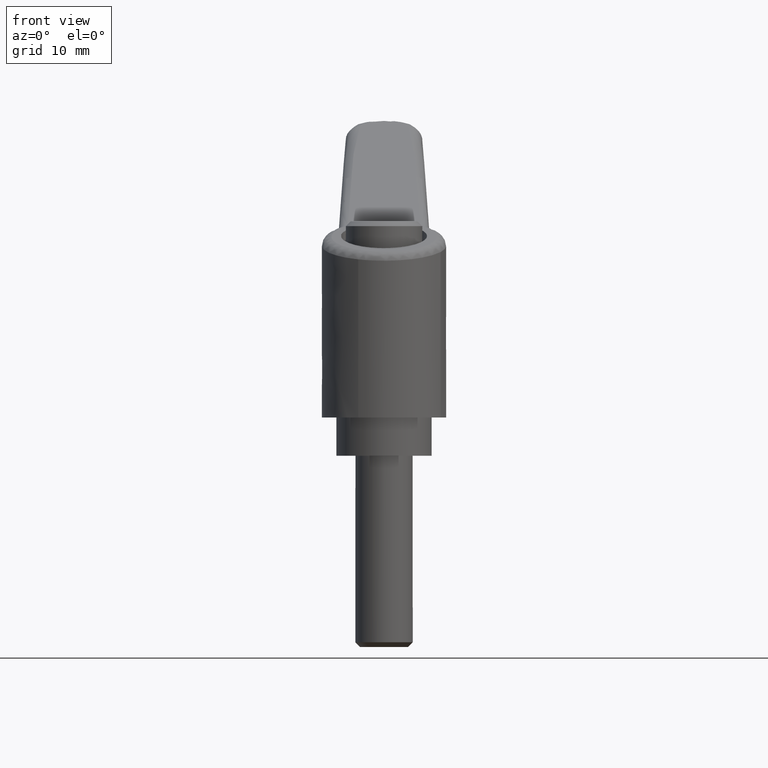
[diagram: clean part render]
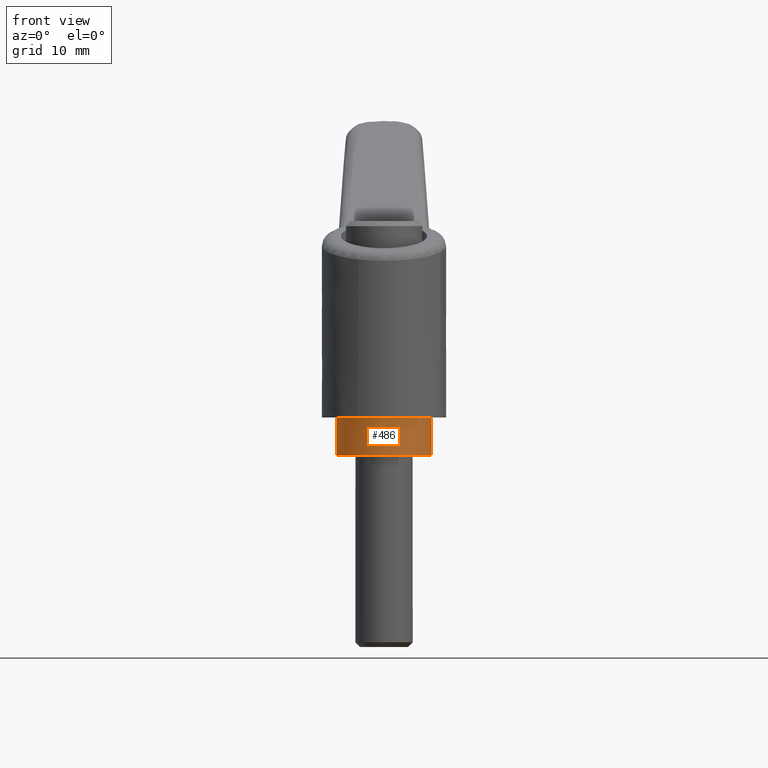
[diagram: same view with one face highlighted and labeled with its STEP entity id]
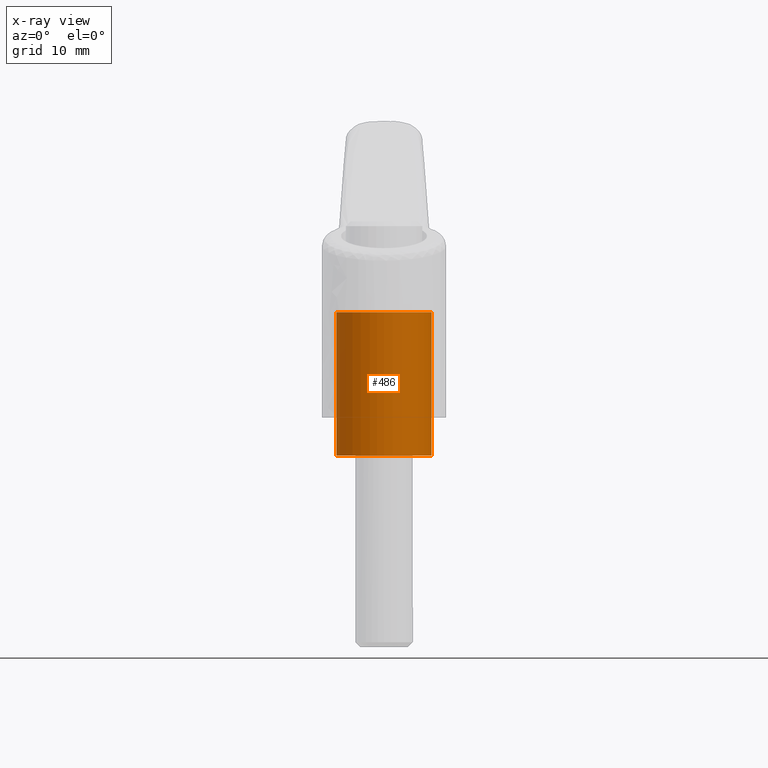
[diagram: x-ray of the same camera — body ghosted, the highlighted face saturated]
A machine part, front view. The second image highlights one B-rep face of the part: STEP entity #486.
The next image is the same camera in x-ray: the body ghosted, the highlighted face saturated — about 0% of this face is hidden behind the body in this view.
In plain terms, the highlighted face is a freeform B-spline surface patch.
Its self-contained STEP definition (entity closure, byte-faithful):
#388=CARTESIAN_POINT('',(-0.392295478639228,-4.984586668665638,15.375000000000000));
#389=CARTESIAN_POINT('',(-5.376882147304866,-4.592291190026410,15.375000000000002));
#390=CARTESIAN_POINT('',(-4.984586668665638,0.392295478639228,15.375000000000000));
#391=CARTESIAN_POINT('',(-4.592291190026410,5.376882147304866,15.375000000000002));
#392=CARTESIAN_POINT('',(0.392295478639228,4.984586668665638,15.375000000000000));
#393=CARTESIAN_POINT('',(-0.392295478639228,-4.984586668665638,-0.384375000000000));
#394=CARTESIAN_POINT('',(-5.376882147304866,-4.592291190026410,-0.384375000000000));
#395=CARTESIAN_POINT('',(-4.984586668665638,0.392295478639228,-0.384375000000000));
#396=CARTESIAN_POINT('',(-4.592291190026410,5.376882147304866,-0.384375000000000));
#397=CARTESIAN_POINT('',(0.392295478639228,4.984586668665638,-0.384375000000000));
#405=(BOUNDED_SURFACE()B_SPLINE_SURFACE(2,1,((#388,#393),(#389,#394),(#390,#395),(#391,#396),(#392,#397)),.UNSPECIFIED.,.F.,.F.,.U.)B_SPLINE_SURFACE_WITH_KNOTS((3,2,3),(2,2),(0.0,8.284271247461899,16.568542494923800),(0.0,15.759375000000000),.UNSPECIFIED.)GEOMETRIC_REPRESENTATION_ITEM()RATIONAL_B_SPLINE_SURFACE(((1.0,1.0),(0.707106781186548,0.707106781186548),(1.0,1.0),(0.707106781186548,0.707106781186548),(1.0,1.0)))REPRESENTATION_ITEM('')SURFACE());
#406=CARTESIAN_POINT('',(-5.0,0.0,0.0));
#407=VERTEX_POINT('',#406);
#408=CARTESIAN_POINT('',(-0.392295478704182,-4.984586668660526,-8.604228E-016));
#409=VERTEX_POINT('',#408);
#410=CARTESIAN_POINT('',(-5.0,0.0,0.0));
#411=CARTESIAN_POINT('',(-5.0,-4.621952458170204,0.0));
#412=CARTESIAN_POINT('',(-0.392295478704181,-4.984586668660526,-8.604228E-016));
#420=(BOUNDED_CURVE()B_SPLINE_CURVE(2,(#410,#411,#412),.UNSPECIFIED.,.F.,.U.)B_SPLINE_CURVE_WITH_KNOTS((3,3),(0.0,0.236331300628299),.UNSPECIFIED.)CURVE()GEOMETRIC_REPRESENTATION_ITEM()RATIONAL_B_SPLINE_CURVE((1.0,0.723120658610431,0.969723356162492))REPRESENTATION_ITEM(''));
#421=EDGE_CURVE('',#407,#409,#420,.T.);
#422=ORIENTED_EDGE('',*,*,#421,.T.);
#423=CARTESIAN_POINT('',(-0.392295478704181,-4.984586668660527,15.0));
#424=VERTEX_POINT('',#423);
#425=CARTESIAN_POINT('',(-0.392295478704181,-4.984586668660527,15.0));
#426=CARTESIAN_POINT('',(-0.392295478704182,-4.984586668660526,-8.604228E-016));
#427=QUASI_UNIFORM_CURVE('',1,(#425,#426),.UNSPECIFIED.,.F.,.U.);
#428=EDGE_CURVE('',#424,#409,#427,.T.);
#429=ORIENTED_EDGE('',*,*,#428,.F.);
#430=CARTESIAN_POINT('',(-5.0,0.0,15.0));
#431=VERTEX_POINT('',#430);
#432=CARTESIAN_POINT('',(-5.0,0.0,15.0));
#433=CARTESIAN_POINT('',(-5.0,-4.621952458170204,15.000000000000007));
#434=CARTESIAN_POINT('',(-0.392295478704181,-4.984586668660527,14.999999999999996));
#442=(BOUNDED_CURVE()B_SPLINE_CURVE(2,(#432,#433,#434),.UNSPECIFIED.,.F.,.U.)B_SPLINE_CURVE_WITH_KNOTS((3,3),(0.0,0.236331300628299),.UNSPECIFIED.)CURVE()GEOMETRIC_REPRESENTATION_ITEM()RATIONAL_B_SPLINE_CURVE((1.0,0.723120658610431,0.969723356162492))REPRESENTATION_ITEM(''));
#443=EDGE_CURVE('',#431,#424,#442,.T.);
#444=ORIENTED_EDGE('',*,*,#443,.F.);
#445=CARTESIAN_POINT('',(0.392295478704180,4.984586668660526,15.0));
#446=VERTEX_POINT('',#445);
#447=CARTESIAN_POINT('',(0.392295478704180,4.984586668660526,15.000000000000002));
#448=CARTESIAN_POINT('',(0.196450535103604,4.999999999999999,15.0));
#449=CARTESIAN_POINT('',(0.0,5.0,15.0));
#450=CARTESIAN_POINT('',(-5.000000000000001,5.000000000000001,14.999999999999995));
#451=CARTESIAN_POINT('',(-5.0,0.0,15.0));
#459=(BOUNDED_CURVE()B_SPLINE_CURVE(2,(#447,#448,#449,#450,#451),.UNSPECIFIED.,.F.,.U.)B_SPLINE_CURVE_WITH_KNOTS((3,2,3),(0.736331300628299,0.750000000000000,1.0),.UNSPECIFIED.)CURVE()GEOMETRIC_REPRESENTATION_ITEM()RATIONAL_B_SPLINE_CURVE((0.969723356162492,0.983986122576117,1.0,0.707106781186548,1.0))REPRESENTATION_ITEM(''));
#460=EDGE_CURVE('',#446,#431,#459,.T.);
#461=ORIENTED_EDGE('',*,*,#460,.F.);
#462=CARTESIAN_POINT('',(0.392295478704182,4.984586668660526,9.159340E-016));
#463=VERTEX_POINT('',#462);
#464=CARTESIAN_POINT('',(0.392295478704180,4.984586668660526,15.0));
#465=CARTESIAN_POINT('',(0.392295478704182,4.984586668660526,9.159340E-016));
#466=QUASI_UNIFORM_CURVE('',1,(#464,#465),.UNSPECIFIED.,.F.,.U.);
#467=EDGE_CURVE('',#446,#463,#466,.T.);
#468=ORIENTED_EDGE('',*,*,#467,.T.);
#469=CARTESIAN_POINT('',(0.392295478704182,4.984586668660526,9.159340E-016));
#470=CARTESIAN_POINT('',(0.196450535103606,5.0,0.0));
#471=CARTESIAN_POINT('',(0.0,5.0,0.0));
#472=CARTESIAN_POINT('',(-5.000000000000001,5.000000000000001,0.0));
#473=CARTESIAN_POINT('',(-5.0,0.0,0.0));
#481=(BOUNDED_CURVE()B_SPLINE_CURVE(2,(#469,#470,#471,#472,#473),.UNSPECIFIED.,.F.,.U.)B_SPLINE_CURVE_WITH_KNOTS((3,2,3),(0.736331300628299,0.750000000000000,1.0),.UNSPECIFIED.)CURVE()GEOMETRIC_REPRESENTATION_ITEM()RATIONAL_B_SPLINE_CURVE((0.969723356162492,0.983986122576116,1.0,0.707106781186548,1.0))REPRESENTATION_ITEM(''));
#482=EDGE_CURVE('',#463,#407,#481,.T.);
#483=ORIENTED_EDGE('',*,*,#482,.T.);
#484=EDGE_LOOP('',(#422,#429,#444,#461,#468,#483));
#485=FACE_OUTER_BOUND('',#484,.T.);
#486=ADVANCED_FACE('',(#485),#405,.T.);